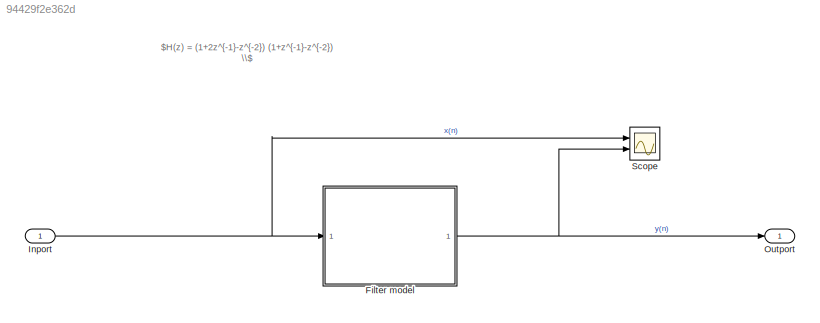
MODEL slx_94429f2e362d
KIND model
CONFIG AbsTol = auto
CONFIG EnableMultiTasking = off
CONFIG FixedStep = auto
CONFIG MaxStep = auto
CONFIG MinStep = auto
CONFIG RelTol = 1e-3
CONFIG SampleTimeConstraint = Unconstrained
CONFIG SolverName = VariableStepAuto
CONFIG StartTime = 0.0
CONFIG StopTime = 120
WORKSPACE source: MATLAB code (in-file)
WORKSPACE h2r = 2*pi  (= 6.28318530718)
WORKSPACE tStop = 10
WORKSPACE Fs = 48000
WORKSPACE dt = 1/Fs  (= 2.08333333333e-05)
WORKSPACE t = (0:dt:tStop)'
WORKSPACE nFreq = 50
WORKSPACE K = 0.05
WORKSPACE sig1 = sin(1*t*h2r)
WORKSPACE sig2 = K*sin(nFreq*t*h2r)
WORKSPACE noise = sig1 + sig2
BLOCK [ModelReference] Filter model
  ModelNameDialog = Filter_model
  ModelReferenceVersion = 1.1
  Ports = [1, 1]
BLOCK [Inport] Inport
BLOCK [Outport] Outport
BLOCK [Scope] Scope
  Floating = off
  NumInputPorts = 2
  Ports = [2]
  ScopeSpecificationString = Simulink.scopes.TimeScopeBlockCfg('CurrentConfiguration', extmgr.ConfigurationSet(extmgr.Configuration('Core','General UI',true),extmgr.Configuration('Core','Source UI',true),extmgr.Configuration('Sources','WiredSimulink',true),extmgr.Configuration('Visuals','Time Domain',true,'SerializedDisplays',{struct('MinYLimReal','-1.00000','MaxYLimReal','1.00000','YLabelReal','','MinYLimMag','0.00000','MaxY...<+1967ch>
ANNOTATION (root): $H(z) = (1+2z^{-1}-z^{-2}) (1+z^{-1}-z^{-2}) \\$
NET Filter model:1 -> Outport:1, Scope:2
NET Inport:1 -> Filter model:1, Scope:1
note: NET lines group one-source signal fan-out (src -> all destinations, sorted); 1:1 wires keep LINE
